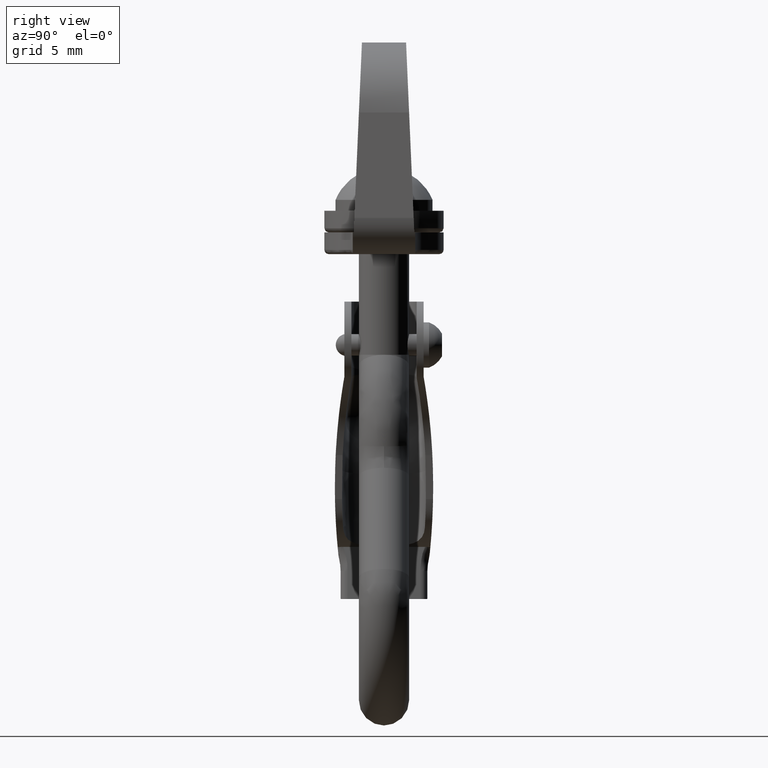
[diagram: clean part render]
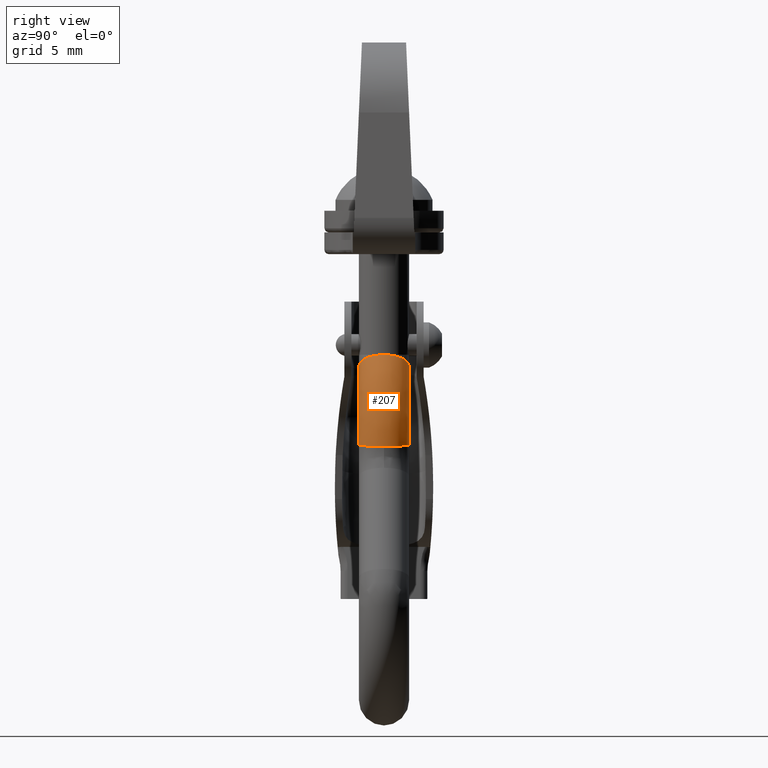
[diagram: same view with one face highlighted and labeled with its STEP entity id]
A machine part, right view. The second image highlights one B-rep face of the part: STEP entity #207.
In plain terms, the highlighted face is a freeform B-spline surface patch.
Its self-contained STEP definition (entity closure, byte-faithful):
#207=ADVANCED_FACE('',(#892),#891,.T.);
#891=( BOUNDED_SURFACE() B_SPLINE_SURFACE( 2,2,((#2521,#2522,#2523),(#2524,#2525,#2526),(#2527,#2528,#2529),(#2530,#2531,#2532),(#2533,#2534,#2535),(#2536,#2537,#2538),(#2539,#2540,#2541),(#2542,#2543,#2544),(#2545,#2546,#2547)), .UNSPECIFIED.,.T.,.F.,.F.) B_SPLINE_SURFACE_WITH_KNOTS((3,2,2,2,3),(3,3),(-3.14159265359E+00,-1.57079632679E+00,4.44089209850E-16,1.57079632679E+00,3.14159265359E+00),(0.00000000000E+00,7.86367418188E-01), .UNSPECIFIED. ) GEOMETRIC_REPRESENTATION_ITEM() RATIONAL_B_SPLINE_SURFACE(((1.00000000000E+00,9.23693965151E-01,1.00000000000E+00),(7.07106781187E-01,6.53150266499E-01,7.07106781187E-01),(1.00000000000E+00,9.23693965151E-01,1.00000000000E+00),(7.07106781187E-01,6.53150266499E-01,7.07106781187E-01),(1.00000000000E+00,9.23693965151E-01,1.00000000000E+00),(7.07106781187E-01,6.53150266499E-01,7.07106781187E-01),(1.00000000000E+00,9.23693965151E-01,1.00000000000E+00),(7.07106781187E-01,6.53150266499E-01,7.07106781187E-01),(1.00000000000E+00,9.23693965151E-01,1.00000000000E+00))) REPRESENTATION_ITEM('') SURFACE() );
#892=FACE_OUTER_BOUND('',#2548,.T.);
#2521=CARTESIAN_POINT('',(-3.10336200318E-01,2.21824175781E-13,-7.60448191236E+00));
#2522=CARTESIAN_POINT('',(1.11711004597E-01,2.21824175781E-13,-3.69620821432E+00));
#2523=CARTESIAN_POINT('',(-2.35639008851E+00,2.21824175781E-13,-6.36599720372E-01));
#2524=CARTESIAN_POINT('',(-3.10336200318E-01,-1.80000000000E+00,-7.60448191236E+00));
#2525=CARTESIAN_POINT('',(1.11711004597E-01,-1.80000000000E+00,-3.69620821432E+00));
#2526=CARTESIAN_POINT('',(-2.35639008851E+00,-1.80000000000E+00,-6.36599720372E-01));
#2527=CARTESIAN_POINT('',(1.47925941491E+00,-1.80000000000E+00,-7.79773701313E+00));
#2528=CARTESIAN_POINT('',(1.98146525126E+00,-1.80000000000E+00,-3.14717224601E+00));
#2529=CARTESIAN_POINT('',(-9.55397638104E-01,-1.80000000000E+00,4.93541931774E-01));
#2530=CARTESIAN_POINT('',(3.26885503013E+00,-1.80000000000E+00,-7.99099211389E+00));
#2531=CARTESIAN_POINT('',(3.85121949793E+00,-1.80000000000E+00,-2.59813627770E+00));
#2532=CARTESIAN_POINT('',(4.45594812298E-01,-1.80000000000E+00,1.62368358392E+00));
#2533=CARTESIAN_POINT('',(3.26885503013E+00,2.22044604925E-13,-7.99099211389E+00));
#2534=CARTESIAN_POINT('',(3.85121949793E+00,2.22044604925E-13,-2.59813627770E+00));
#2535=CARTESIAN_POINT('',(4.45594812298E-01,2.22044604925E-13,1.62368358392E+00));
#2536=CARTESIAN_POINT('',(3.26885503013E+00,1.80000000000E+00,-7.99099211389E+00));
#2537=CARTESIAN_POINT('',(3.85121949793E+00,1.80000000000E+00,-2.59813627770E+00));
#2538=CARTESIAN_POINT('',(4.45594812298E-01,1.80000000000E+00,1.62368358392E+00));
#2539=CARTESIAN_POINT('',(1.47925941491E+00,1.80000000000E+00,-7.79773701313E+00));
#2540=CARTESIAN_POINT('',(1.98146525126E+00,1.80000000000E+00,-3.14717224601E+00));
#2541=CARTESIAN_POINT('',(-9.55397638104E-01,1.80000000000E+00,4.93541931774E-01));
#2542=CARTESIAN_POINT('',(-3.10336200318E-01,1.80000000000E+00,-7.60448191236E+00));
#2543=CARTESIAN_POINT('',(1.11711004597E-01,1.80000000000E+00,-3.69620821432E+00));
#2544=CARTESIAN_POINT('',(-2.35639008851E+00,1.80000000000E+00,-6.36599720372E-01));
#2545=CARTESIAN_POINT('',(-3.10336200318E-01,2.22265034069E-13,-7.60448191236E+00));
#2546=CARTESIAN_POINT('',(1.11711004597E-01,2.22265034069E-13,-3.69620821432E+00));
#2547=CARTESIAN_POINT('',(-2.35639008851E+00,2.22265034069E-13,-6.36599720372E-01));
#2548=EDGE_LOOP('',(#4071,#4072,#4073,#4074,#4075,#4076));
#4071=ORIENTED_EDGE('',*,*,#4784,.T.);
#4072=ORIENTED_EDGE('',*,*,#4740,.T.);
#4073=ORIENTED_EDGE('',*,*,#4755,.F.);
#4074=ORIENTED_EDGE('',*,*,#4780,.F.);
#4075=ORIENTED_EDGE('',*,*,#4785,.F.);
#4076=ORIENTED_EDGE('',*,*,#4759,.F.);
#4740=EDGE_CURVE('',#5902,#5950,#5957,.T.);
#4755=EDGE_CURVE('',#6051,#5950,#6058,.T.);
#4759=EDGE_CURVE('',#6078,#6085,#6086,.T.);
#4780=EDGE_CURVE('',#6220,#6051,#6221,.T.);
#4784=EDGE_CURVE('',#6078,#5902,#6246,.T.);
#4785=EDGE_CURVE('',#6085,#6220,#6252,.T.);
#5902=VERTEX_POINT('',#8561);
#5950=VERTEX_POINT('',#8599);
#5957=CIRCLE('',#8607,1.80000000000E+00);
#6051=VERTEX_POINT('',#8694);
#6058=CIRCLE('',#8702,1.12772696986E+01);
#6078=VERTEX_POINT('',#8713);
#6085=VERTEX_POINT('',#8718);
#6086=CIRCLE('',#8722,1.12772696986E+01);
#6220=VERTEX_POINT('',#8804);
#6221=CIRCLE('',#8808,1.80000000000E+00);
#6246=CIRCLE('',#8824,1.80000000000E+00);
#6252=CIRCLE('',#8828,1.80000000000E+00);
#8561=CARTESIAN_POINT('',(1.94444444444E+00,2.22044604925E-13,-7.00000000000E-01));
#8599=CARTESIAN_POINT('',(3.37145219001E-01,-1.80000000000E+00,-1.51030191897E+00));
#8604=CARTESIAN_POINT('',(3.37145219001E-01,1.73472347598E-13,-1.51030191897E+00));
#8605=DIRECTION('',(4.50167732762E-01,0.00000000000E+00,-8.92944014135E-01));
#8606=DIRECTION('',(-8.92944014135E-01,-0.00000000000E+00,-4.50167732762E-01));
#8607=AXIS2_PLACEMENT_3D('',#8604,#8605,#8606);
#8694=CARTESIAN_POINT('',(1.52910226980E+00,-1.80000000000E+00,-7.17501272324E+00));
#8699=CARTESIAN_POINT('',(-9.73282525414E+00,-1.80000000000E+00,-6.58696485093E+00));
#8700=DIRECTION('',(0.00000000000E+00,-1.00000000000E+00,0.00000000000E+00));
#8701=DIRECTION('',(-0.00000000000E+00,-0.00000000000E+00,-1.00000000000E+00));
#8702=AXIS2_PLACEMENT_3D('',#8699,#8700,#8701);
#8713=CARTESIAN_POINT('',(3.37145219001E-01,1.80000000000E+00,-1.51030191897E+00));
#8718=CARTESIAN_POINT('',(1.52910226980E+00,1.80000000000E+00,-7.17501272324E+00));
#8719=CARTESIAN_POINT('',(-9.73282525414E+00,1.80000000000E+00,-6.58696485093E+00));
#8720=DIRECTION('',(-0.00000000000E+00,1.00000000000E+00,0.00000000000E+00));
#8721=DIRECTION('',(-0.00000000000E+00,-0.00000000000E+00,-1.00000000000E+00));
#8722=AXIS2_PLACEMENT_3D('',#8719,#8720,#8721);
#8804=CARTESIAN_POINT('',(3.32665345771E+00,-3.14257544475E-10,-7.26887286833E+00));
#8805=CARTESIAN_POINT('',(1.52910226980E+00,1.67834496301E-13,-7.17501272324E+00));
#8806=DIRECTION('',(-5.21445250515E-02,1.54074395551E-33,-9.98639548840E-01));
#8807=DIRECTION('',(-1.83441050503E-16,1.00000000000E+00,9.57847750426E-18));
#8808=AXIS2_PLACEMENT_3D('',#8805,#8806,#8807);
#8821=CARTESIAN_POINT('',(3.37145219001E-01,2.22044604925E-13,-1.51030191897E+00));
#8822=DIRECTION('',(4.50167732762E-01,0.00000000000E+00,-8.92944014135E-01));
#8823=DIRECTION('',(-8.92944014135E-01,-0.00000000000E+00,-4.50167732762E-01));
#8824=AXIS2_PLACEMENT_3D('',#8821,#8822,#8823);
#8825=CARTESIAN_POINT('',(1.52910226980E+00,1.67834496301E-13,-7.17501272324E+00));
#8826=DIRECTION('',(-5.21445250515E-02,1.54074395551E-33,-9.98639548840E-01));
#8827=DIRECTION('',(-1.83441050503E-16,1.00000000000E+00,9.57847750426E-18));
#8828=AXIS2_PLACEMENT_3D('',#8825,#8826,#8827);